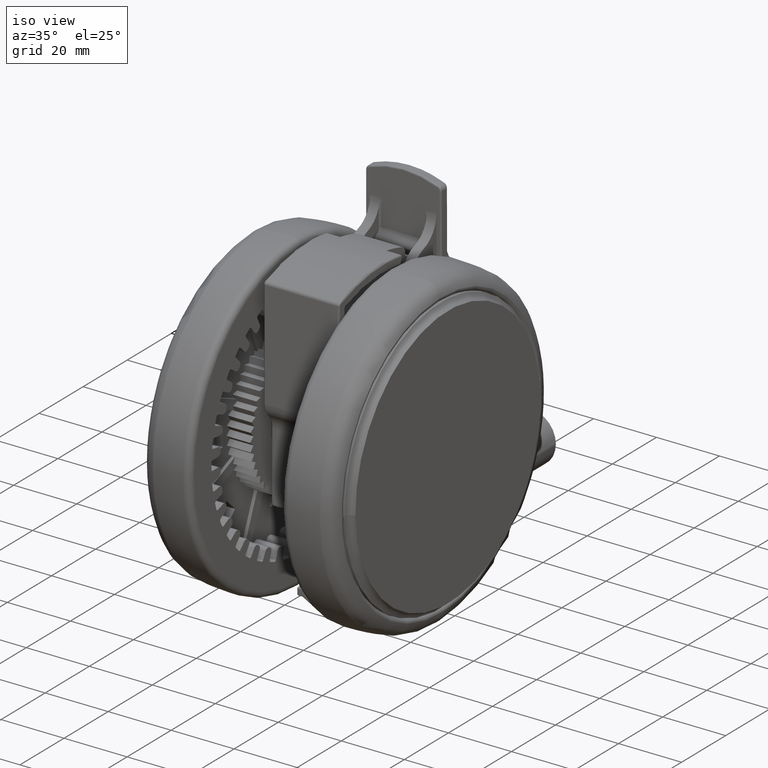
[diagram: clean part render]
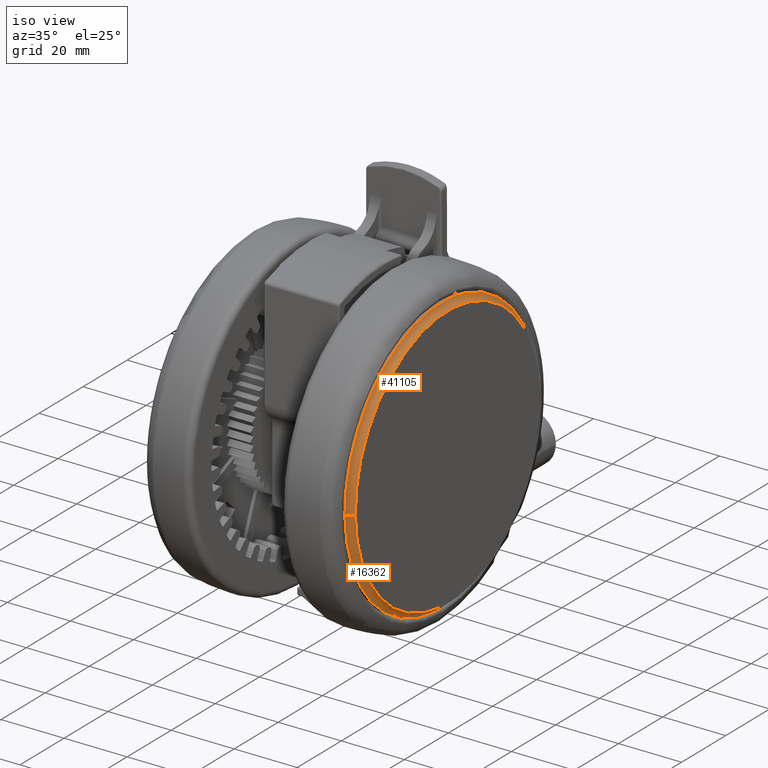
[diagram: same view with one multi-face feature highlighted, each face labeled with its STEP entity id]
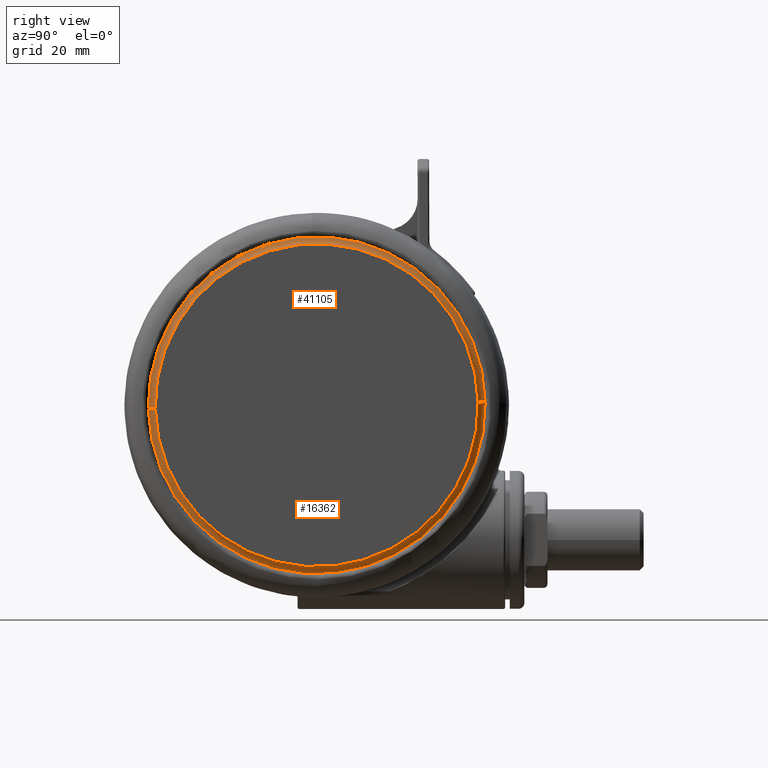
[diagram: same view with one multi-face feature highlighted, each face labeled with its STEP entity id]
A machine part, iso view. The highlighted faces form ONE feature: a constant-radius fillet chain: 2 tangent blend faces with common blend radius 2.0507 mm. The faces share edges in the B-rep.
A second angle (right view) of the same feature is appended — it is thin or edge-on in the first view.
Their STEP definitions:
[1] entity #41105 (Torus):
#421 = CIRCLE ( 'NONE', #69722, 2.050731300344617500 ) ;
#1232 = CIRCLE ( 'NONE', #31026, 43.81162395321010200 ) ;
#1261 = FACE_OUTER_BOUND ( 'NONE', #25642, .T. ) ;
#3402 = AXIS2_PLACEMENT_3D ( 'NONE', #7304, #51536, #13718 ) ;
#4590 = ORIENTED_EDGE ( 'NONE', *, *, #22410, .F. ) ;
#6072 = CARTESIAN_POINT ( 'NONE',  ( -44.04999999999999700, 5.394569150244090700E-015, -0.05476190476190339500 ) ) ;
#7304 = CARTESIAN_POINT ( 'NONE',  ( 44.04999999999999700, 0.0000000000000000000, -0.05476190476190339500 ) ) ;
#12390 = CARTESIAN_POINT ( 'NONE',  ( 0.0000000000000000000, 0.0000000000000000000, -2.091591727423864900 ) ) ;
#12459 = DIRECTION ( 'NONE',  ( -1.000000000000000000, 1.224646799147356900E-016, 0.0000000000000000000 ) ) ;
#12754 = DIRECTION ( 'NONE',  ( 0.0000000000000000000, 0.0000000000000000000, 1.000000000000000000 ) ) ;
#13015 = AXIS2_PLACEMENT_3D ( 'NONE', #50599, #12754, #56932 ) ;
#13718 = DIRECTION ( 'NONE',  ( 0.0000000000000000000, 0.0000000000000000000, -1.000000000000000000 ) ) ;
#14487 = ORIENTED_EDGE ( 'NONE', *, *, #81873, .F. ) ;
#18773 = DIRECTION ( 'NONE',  ( 1.000000000000000000, 0.0000000000000000000, 0.0000000000000000000 ) ) ;
#22410 = EDGE_CURVE ( 'NONE', #50703, #60427, #24153, .T. ) ;
#22943 = EDGE_CURVE ( 'NONE', #80729, #44796, #1232, .T. ) ;
#22979 = CARTESIAN_POINT ( 'NONE',  ( 41.99926869965538100, 0.0000000000000000000, -0.05476190476190365100 ) ) ;
#24153 = CIRCLE ( 'NONE', #13015, 41.99926869965538100 ) ;
#25642 = EDGE_LOOP ( 'NONE', ( #4590, #52564, #42436, #14487 ) ) ;
#31026 = AXIS2_PLACEMENT_3D ( 'NONE', #12390, #56566, #18773 ) ;
#34977 = TOROIDAL_SURFACE ( 'NONE', #65019, 44.04999999999999700, 2.050731300344620100 ) ;
#41105 = ADVANCED_FACE ( 'NONE', ( #1261 ), #34977, .F. ) ;
#42436 = ORIENTED_EDGE ( 'NONE', *, *, #22943, .T. ) ;
#42748 = CARTESIAN_POINT ( 'NONE',  ( -41.99926869965538100, 5.143426997956257600E-015, -0.05476190476190365100 ) ) ;
#44163 = CARTESIAN_POINT ( 'NONE',  ( 43.81162395316311400, 0.0000000000000000000, -2.091591727423864900 ) ) ;
#44796 = VERTEX_POINT ( 'NONE', #44163 ) ;
#44908 = CIRCLE ( 'NONE', #3402, 2.050731300344620100 ) ;
#47017 = EDGE_CURVE ( 'NONE', #50703, #80729, #421, .T. ) ;
#49001 = DIRECTION ( 'NONE',  ( 1.000000000000000000, 0.0000000000000000000, 0.0000000000000000000 ) ) ;
#50273 = DIRECTION ( 'NONE',  ( 1.224646799147353200E-016, 1.000000000000000000, -0.0000000000000000000 ) ) ;
#50599 = CARTESIAN_POINT ( 'NONE',  ( 0.0000000000000000000, 0.0000000000000000000, -0.05476190476190365100 ) ) ;
#50703 = VERTEX_POINT ( 'NONE', #42748 ) ;
#51536 = DIRECTION ( 'NONE',  ( 0.0000000000000000000, -1.000000000000000000, 0.0000000000000000000 ) ) ;
#52564 = ORIENTED_EDGE ( 'NONE', *, *, #47017, .T. ) ;
#56566 = DIRECTION ( 'NONE',  ( 0.0000000000000000000, 0.0000000000000000000, 1.000000000000000000 ) ) ;
#56932 = DIRECTION ( 'NONE',  ( 1.000000000000000000, 0.0000000000000000000, 0.0000000000000000000 ) ) ;
#60427 = VERTEX_POINT ( 'NONE', #22979 ) ;
#61404 = CARTESIAN_POINT ( 'NONE',  ( 0.0000000000000000000, 0.0000000000000000000, -0.05476190476190339500 ) ) ;
#65019 = AXIS2_PLACEMENT_3D ( 'NONE', #61404, #80429, #49001 ) ;
#69722 = AXIS2_PLACEMENT_3D ( 'NONE', #6072, #50273, #12459 ) ;
#80429 = DIRECTION ( 'NONE',  ( 0.0000000000000000000, 0.0000000000000000000, 1.000000000000000000 ) ) ;
#80729 = VERTEX_POINT ( 'NONE', #80911 ) ;
#80911 = CARTESIAN_POINT ( 'NONE',  ( -43.81162395316311400, 5.365376503968872300E-015, -2.091591727423864900 ) ) ;
#81873 = EDGE_CURVE ( 'NONE', #60427, #44796, #44908, .T. ) ;
[2] entity #16362 (Torus):
#421 = CIRCLE ( 'NONE', #69722, 2.050731300344617500 ) ;
#2664 = AXIS2_PLACEMENT_3D ( 'NONE', #79331, #35236, #60581 ) ;
#3402 = AXIS2_PLACEMENT_3D ( 'NONE', #7304, #51536, #13718 ) ;
#3491 = ORIENTED_EDGE ( 'NONE', *, *, #81873, .T. ) ;
#6072 = CARTESIAN_POINT ( 'NONE',  ( -44.04999999999999700, 5.394569150244090700E-015, -0.05476190476190339500 ) ) ;
#6435 = EDGE_CURVE ( 'NONE', #44796, #80729, #20625, .T. ) ;
#7304 = CARTESIAN_POINT ( 'NONE',  ( 44.04999999999999700, 0.0000000000000000000, -0.05476190476190339500 ) ) ;
#8929 = DIRECTION ( 'NONE',  ( 0.0000000000000000000, 0.0000000000000000000, 1.000000000000000000 ) ) ;
#11812 = EDGE_LOOP ( 'NONE', ( #66471, #3491, #69807, #26404 ) ) ;
#12013 = CIRCLE ( 'NONE', #42652, 41.99926869965538100 ) ;
#12459 = DIRECTION ( 'NONE',  ( -1.000000000000000000, 1.224646799147356900E-016, 0.0000000000000000000 ) ) ;
#13718 = DIRECTION ( 'NONE',  ( 0.0000000000000000000, 0.0000000000000000000, -1.000000000000000000 ) ) ;
#16362 = ADVANCED_FACE ( 'NONE', ( #44847 ), #61624, .F. ) ;
#16870 = AXIS2_PLACEMENT_3D ( 'NONE', #66342, #28543, #72674 ) ;
#20625 = CIRCLE ( 'NONE', #16870, 43.81162395321010200 ) ;
#22979 = CARTESIAN_POINT ( 'NONE',  ( 41.99926869965538100, 0.0000000000000000000, -0.05476190476190365100 ) ) ;
#26404 = ORIENTED_EDGE ( 'NONE', *, *, #47017, .F. ) ;
#28543 = DIRECTION ( 'NONE',  ( 0.0000000000000000000, 0.0000000000000000000, 1.000000000000000000 ) ) ;
#35236 = DIRECTION ( 'NONE',  ( 0.0000000000000000000, 0.0000000000000000000, 1.000000000000000000 ) ) ;
#42652 = AXIS2_PLACEMENT_3D ( 'NONE', #46775, #8929, #53145 ) ;
#42748 = CARTESIAN_POINT ( 'NONE',  ( -41.99926869965538100, 5.143426997956257600E-015, -0.05476190476190365100 ) ) ;
#44163 = CARTESIAN_POINT ( 'NONE',  ( 43.81162395316311400, 0.0000000000000000000, -2.091591727423864900 ) ) ;
#44796 = VERTEX_POINT ( 'NONE', #44163 ) ;
#44847 = FACE_OUTER_BOUND ( 'NONE', #11812, .T. ) ;
#44908 = CIRCLE ( 'NONE', #3402, 2.050731300344620100 ) ;
#46775 = CARTESIAN_POINT ( 'NONE',  ( 0.0000000000000000000, 0.0000000000000000000, -0.05476190476190365100 ) ) ;
#47017 = EDGE_CURVE ( 'NONE', #50703, #80729, #421, .T. ) ;
#50273 = DIRECTION ( 'NONE',  ( 1.224646799147353200E-016, 1.000000000000000000, -0.0000000000000000000 ) ) ;
#50703 = VERTEX_POINT ( 'NONE', #42748 ) ;
#51536 = DIRECTION ( 'NONE',  ( 0.0000000000000000000, -1.000000000000000000, 0.0000000000000000000 ) ) ;
#53145 = DIRECTION ( 'NONE',  ( 1.000000000000000000, 0.0000000000000000000, 0.0000000000000000000 ) ) ;
#60427 = VERTEX_POINT ( 'NONE', #22979 ) ;
#60581 = DIRECTION ( 'NONE',  ( 1.000000000000000000, 0.0000000000000000000, 0.0000000000000000000 ) ) ;
#61624 = TOROIDAL_SURFACE ( 'NONE', #2664, 44.04999999999999700, 2.050731300344620100 ) ;
#66342 = CARTESIAN_POINT ( 'NONE',  ( 0.0000000000000000000, 0.0000000000000000000, -2.091591727423864900 ) ) ;
#66471 = ORIENTED_EDGE ( 'NONE', *, *, #73993, .F. ) ;
#69722 = AXIS2_PLACEMENT_3D ( 'NONE', #6072, #50273, #12459 ) ;
#69807 = ORIENTED_EDGE ( 'NONE', *, *, #6435, .T. ) ;
#72674 = DIRECTION ( 'NONE',  ( 1.000000000000000000, 0.0000000000000000000, 0.0000000000000000000 ) ) ;
#73993 = EDGE_CURVE ( 'NONE', #60427, #50703, #12013, .T. ) ;
#79331 = CARTESIAN_POINT ( 'NONE',  ( 0.0000000000000000000, 0.0000000000000000000, -0.05476190476190339500 ) ) ;
#80729 = VERTEX_POINT ( 'NONE', #80911 ) ;
#80911 = CARTESIAN_POINT ( 'NONE',  ( -43.81162395316311400, 5.365376503968872300E-015, -2.091591727423864900 ) ) ;
#81873 = EDGE_CURVE ( 'NONE', #60427, #44796, #44908, .T. ) ;